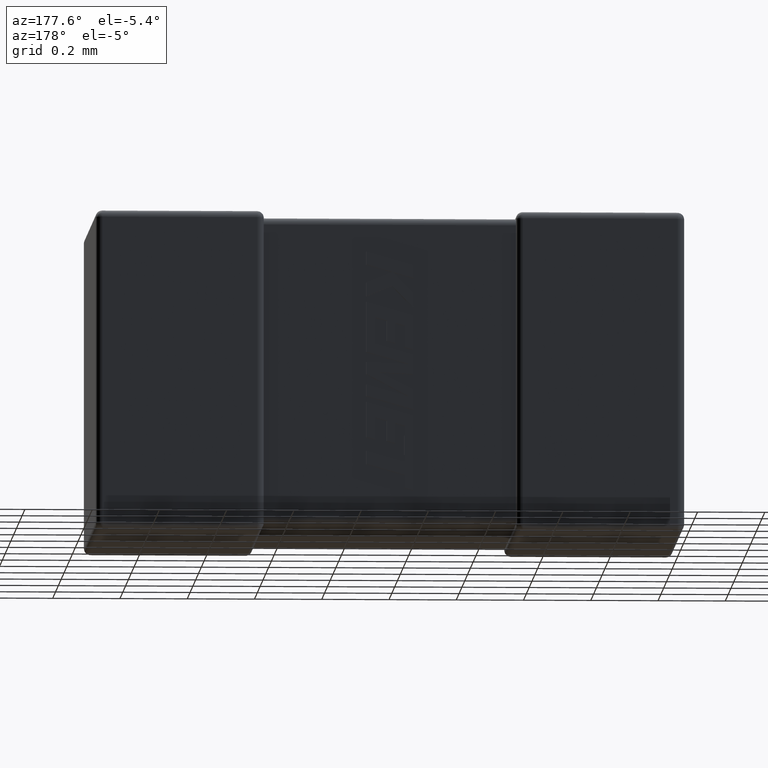
[diagram: clean part render]
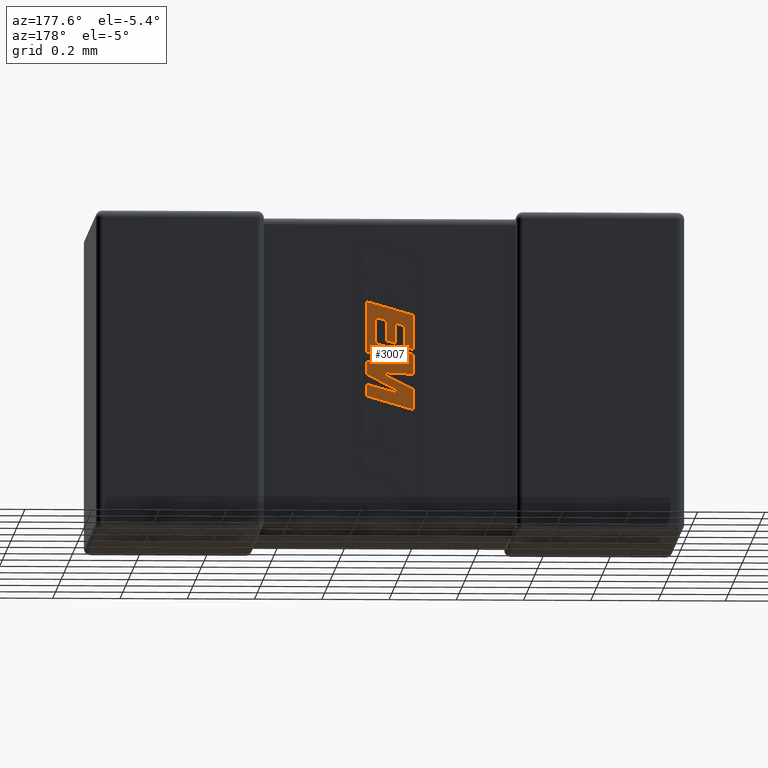
[diagram: same view with one face highlighted and labeled with its STEP entity id]
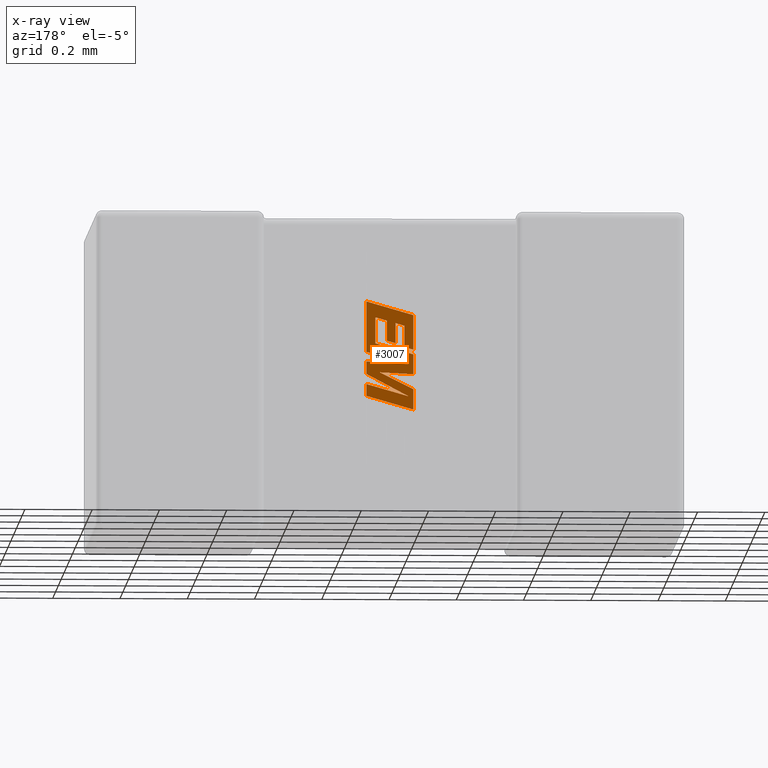
[diagram: x-ray of the same camera — body ghosted, the highlighted face saturated]
A machine part, auxiliary view. The second image highlights one B-rep face of the part: STEP entity #3007.
The next image is the same camera in x-ray: the body ghosted, the highlighted face saturated — about 0% of this face is hidden behind the body in this view.
In plain terms, the highlighted planar face has unit normal (0, -1, 0).
Its self-contained STEP definition (entity closure, byte-faithful):
#19 = CARTESIAN_POINT ( 'NONE',  ( 0.8053395720805847091, 0.8552400000000002223, -0.5908525053673584493 ) ) ;
#91 = CARTESIAN_POINT ( 'NONE',  ( 0.9184295188700125623, 0.8552400000000002223, -0.3935013928317807608 ) ) ;
#92 = DIRECTION ( 'NONE',  ( -0.9985542843760948362, 0.000000000000000000, -0.05375259206908061804 ) ) ;
#118 = ORIENTED_EDGE ( 'NONE', *, *, #2571, .T. ) ;
#128 = PLANE ( 'NONE',  #1115 ) ;
#167 = LINE ( 'NONE', #4119, #615 ) ;
#192 = VERTEX_POINT ( 'NONE', #470 ) ;
#251 = CARTESIAN_POINT ( 'NONE',  ( 0.8579000349360555999, 0.8552400000000002223, -0.3333375343456604356 ) ) ;
#276 = CARTESIAN_POINT ( 'NONE',  ( 0.9450000000000022826, 0.8552400000000002223, -0.4851328202125018696 ) ) ;
#277 = VERTEX_POINT ( 'NONE', #718 ) ;
#322 = VECTOR ( 'NONE', #440, 1000.000000000000000 ) ;
#327 = EDGE_CURVE ( 'NONE', #4285, #4440, #2148, .T. ) ;
#333 = ORIENTED_EDGE ( 'NONE', *, *, #2690, .T. ) ;
#340 = DIRECTION ( 'NONE',  ( -0.9615454294334448981, 0.000000000000000000, -0.2746459304917006072 ) ) ;
#370 = LINE ( 'NONE', #2471, #3634 ) ;
#376 = CARTESIAN_POINT ( 'NONE',  ( 0.9450000000000022826, 0.8552400000000002223, -0.2687122809135727430 ) ) ;
#384 = VECTOR ( 'NONE', #1801, 1000.000000000000114 ) ;
#388 = VECTOR ( 'NONE', #2748, 1000.000000000000000 ) ;
#435 = DIRECTION ( 'NONE',  ( 0.000000000000000000, 0.000000000000000000, -1.000000000000000000 ) ) ;
#440 = DIRECTION ( 'NONE',  ( 0.000000000000000000, 0.000000000000000000, 1.000000000000000000 ) ) ;
#449 = ORIENTED_EDGE ( 'NONE', *, *, #1684, .T. ) ;
#465 = VECTOR ( 'NONE', #3577, 1000.000000000000000 ) ;
#470 = CARTESIAN_POINT ( 'NONE',  ( 0.9450000000000022826, 0.8552400000000002223, -0.4851328202125018696 ) ) ;
#474 = LINE ( 'NONE', #4068, #1827 ) ;
#491 = DIRECTION ( 'NONE',  ( 0.000000000000000000, 0.000000000000000000, 1.000000000000000000 ) ) ;
#492 = VERTEX_POINT ( 'NONE', #2584 ) ;
#513 = DIRECTION ( 'NONE',  ( 0.9611542233438712390, 0.000000000000000000, 0.2760118818968482213 ) ) ;
#514 = ORIENTED_EDGE ( 'NONE', *, *, #2951, .T. ) ;
#533 = LINE ( 'NONE', #4558, #3491 ) ;
#553 = DIRECTION ( 'NONE',  ( -0.9601763114327565019, 0.000000000000000000, -0.2793947940878393488 ) ) ;
#562 = ORIENTED_EDGE ( 'NONE', *, *, #1768, .T. ) ;
#593 = DIRECTION ( 'NONE',  ( 0.9610853065513847993, 0.000000000000000000, 0.2762517575166369976 ) ) ;
#609 = EDGE_CURVE ( 'NONE', #784, #4287, #4008, .T. ) ;
#610 = EDGE_CURVE ( 'NONE', #3683, #4062, #800, .T. ) ;
#615 = VECTOR ( 'NONE', #491, 1000.000000000000000 ) ;
#628 = CARTESIAN_POINT ( 'NONE',  ( 0.9450000000000022826, 0.8552400000000002223, -0.4191694881637327841 ) ) ;
#652 = CARTESIAN_POINT ( 'NONE',  ( 0.9184295188700125623, 0.8552400000000002223, -0.3935013928317807608 ) ) ;
#686 = ORIENTED_EDGE ( 'NONE', *, *, #2667, .T. ) ;
#693 = CARTESIAN_POINT ( 'NONE',  ( 0.8579000349360555999, 0.8552400000000002223, -0.3333375343456604356 ) ) ;
#718 = CARTESIAN_POINT ( 'NONE',  ( 0.9450000000000022826, 0.8552400000000002223, -0.5506991025592369304 ) ) ;
#777 = LINE ( 'NONE', #2589, #1614 ) ;
#781 = DIRECTION ( 'NONE',  ( -0.9611638845408968512, 0.000000000000000000, -0.2759782365590690012 ) ) ;
#784 = VERTEX_POINT ( 'NONE', #628 ) ;
#800 = LINE ( 'NONE', #2302, #1048 ) ;
#836 = LINE ( 'NONE', #2936, #322 ) ;
#958 = CARTESIAN_POINT ( 'NONE',  ( 0.8837184572183794939, 0.8552400000000002223, -0.3259715192315810195 ) ) ;
#996 = CARTESIAN_POINT ( 'NONE',  ( 0.8206639919705974728, 0.8552400000000002223, -0.4548699891798935746 ) ) ;
#1004 = CARTESIAN_POINT ( 'NONE',  ( 0.8053395720805847091, 0.8552400000000002223, -0.3089009299571303102 ) ) ;
#1027 = DIRECTION ( 'NONE',  ( 0.000000000000000000, 0.000000000000000000, 1.000000000000000000 ) ) ;
#1034 = VECTOR ( 'NONE', #340, 1000.000000000000227 ) ;
#1045 = DIRECTION ( 'NONE',  ( -0.9617234872620624708, 0.000000000000000000, -0.2740217765953968376 ) ) ;
#1048 = VECTOR ( 'NONE', #1252, 1000.000000000000000 ) ;
#1050 = CARTESIAN_POINT ( 'NONE',  ( 0.8319232174250339451, 0.8552400000000002223, -0.3408963415075652037 ) ) ;
#1115 = AXIS2_PLACEMENT_3D ( 'NONE', #4084, #4340, #2556 ) ;
#1121 = CARTESIAN_POINT ( 'NONE',  ( 0.9450000000000022826, 0.8552400000000002223, -0.4479005991159001332 ) ) ;
#1133 = VERTEX_POINT ( 'NONE', #3079 ) ;
#1236 = ORIENTED_EDGE ( 'NONE', *, *, #3587, .T. ) ;
#1252 = DIRECTION ( 'NONE',  ( 0.000000000000000000, 0.000000000000000000, 1.000000000000000000 ) ) ;
#1270 = VECTOR ( 'NONE', #4099, 1000.000000000000227 ) ;
#1308 = VECTOR ( 'NONE', #513, 1000.000000000000114 ) ;
#1310 = EDGE_CURVE ( 'NONE', #4204, #1398, #2897, .T. ) ;
#1330 = ORIENTED_EDGE ( 'NONE', *, *, #3188, .T. ) ;
#1342 = EDGE_CURVE ( 'NONE', #3086, #3363, #4282, .T. ) ;
#1352 = VERTEX_POINT ( 'NONE', #4449 ) ;
#1398 = VERTEX_POINT ( 'NONE', #91 ) ;
#1431 = VERTEX_POINT ( 'NONE', #1121 ) ;
#1445 = ORIENTED_EDGE ( 'NONE', *, *, #3425, .T. ) ;
#1521 = VERTEX_POINT ( 'NONE', #2082 ) ;
#1598 = CARTESIAN_POINT ( 'NONE',  ( 0.9450000000000022826, 0.8552400000000002223, -0.4479005991159001332 ) ) ;
#1614 = VECTOR ( 'NONE', #92, 1000.000000000000227 ) ;
#1684 = EDGE_CURVE ( 'NONE', #4287, #1431, #2913, .T. ) ;
#1768 = EDGE_CURVE ( 'NONE', #192, #1352, #3526, .T. ) ;
#1801 = DIRECTION ( 'NONE',  ( -0.8843386665637650301, 0.000000000000000000, -0.4668459304955136502 ) ) ;
#1827 = VECTOR ( 'NONE', #2011, 1000.000000000000000 ) ;
#1856 = ORIENTED_EDGE ( 'NONE', *, *, #4192, .T. ) ;
#1875 = CARTESIAN_POINT ( 'NONE',  ( 0.8837184572183794939, 0.8552400000000002223, -0.3859069148949116901 ) ) ;
#1936 = ORIENTED_EDGE ( 'NONE', *, *, #2862, .T. ) ;
#1946 = ORIENTED_EDGE ( 'NONE', *, *, #4271, .T. ) ;
#1978 = EDGE_CURVE ( 'NONE', #2854, #3086, #2697, .T. ) ;
#2009 = EDGE_CURVE ( 'NONE', #1431, #192, #4540, .T. ) ;
#2011 = DIRECTION ( 'NONE',  ( 0.000000000000000000, 0.000000000000000000, -1.000000000000000000 ) ) ;
#2034 = VECTOR ( 'NONE', #2053, 1000.000000000000114 ) ;
#2053 = DIRECTION ( 'NONE',  ( -0.9610674221107078363, 0.000000000000000000, -0.2763139702539094689 ) ) ;
#2082 = CARTESIAN_POINT ( 'NONE',  ( 0.9184295188700125623, 0.8552400000000002223, -0.3160813721079296923 ) ) ;
#2114 = CARTESIAN_POINT ( 'NONE',  ( 0.9450000000000022826, 0.8552400000000002223, -0.4191694881637327841 ) ) ;
#2142 = CARTESIAN_POINT ( 'NONE',  ( 0.8053395720805847091, 0.8552400000000002223, -0.3089009299571303102 ) ) ;
#2147 = LINE ( 'NONE', #3576, #1034 ) ;
#2148 = LINE ( 'NONE', #4636, #465 ) ;
#2268 = CARTESIAN_POINT ( 'NONE',  ( 0.8053395720805847091, 0.8552400000000002223, -0.4260076608447047608 ) ) ;
#2302 = CARTESIAN_POINT ( 'NONE',  ( 0.8053395720805847091, 0.8552400000000002223, -0.5908525053673584493 ) ) ;
#2402 = CARTESIAN_POINT ( 'NONE',  ( 0.8053395720805847091, 0.8552400000000002223, -0.4260076608447047608 ) ) ;
#2404 = ORIENTED_EDGE ( 'NONE', *, *, #4036, .T. ) ;
#2439 = EDGE_CURVE ( 'NONE', #4440, #4670, #3516, .T. ) ;
#2448 = CARTESIAN_POINT ( 'NONE',  ( 0.8053395720805847091, 0.8552400000000002223, -0.4120773737585498031 ) ) ;
#2471 = CARTESIAN_POINT ( 'NONE',  ( 0.9184295188700125623, 0.8552400000000002223, -0.3160813721079296923 ) ) ;
#2498 = DIRECTION ( 'NONE',  ( 0.000000000000000000, 0.000000000000000000, -1.000000000000000000 ) ) ;
#2501 = VECTOR ( 'NONE', #2762, 1000.000000000000227 ) ;
#2556 = DIRECTION ( 'NONE',  ( 0.000000000000000000, 0.000000000000000000, -1.000000000000000000 ) ) ;
#2571 = EDGE_CURVE ( 'NONE', #4182, #1133, #777, .T. ) ;
#2584 = CARTESIAN_POINT ( 'NONE',  ( 0.8579000349360555999, 0.8552400000000002223, -0.3932814230507400421 ) ) ;
#2589 = CARTESIAN_POINT ( 'NONE',  ( 0.9051147762025542054, 0.8552400000000002223, -0.4801131553883827285 ) ) ;
#2650 = CARTESIAN_POINT ( 'NONE',  ( 0.9450000000000022826, 0.8552400000000002223, -0.2687122809135727430 ) ) ;
#2657 = DIRECTION ( 'NONE',  ( -0.9619530280415479195, 0.000000000000000000, -0.2732148821746301914 ) ) ;
#2664 = CARTESIAN_POINT ( 'NONE',  ( 0.9450000000000022826, 0.8552400000000002223, -0.5152092289786281976 ) ) ;
#2667 = EDGE_CURVE ( 'NONE', #3519, #277, #2771, .T. ) ;
#2690 = EDGE_CURVE ( 'NONE', #277, #3683, #3110, .T. ) ;
#2697 = LINE ( 'NONE', #251, #3481 ) ;
#2704 = CARTESIAN_POINT ( 'NONE',  ( 0.9450000000000022826, 0.8552400000000002223, -0.5152092289786281976 ) ) ;
#2714 = CARTESIAN_POINT ( 'NONE',  ( 0.8053395720805847091, 0.8552400000000002223, -0.5295983915511064399 ) ) ;
#2746 = VERTEX_POINT ( 'NONE', #958 ) ;
#2748 = DIRECTION ( 'NONE',  ( 0.000000000000000000, 0.000000000000000000, -1.000000000000000000 ) ) ;
#2762 = DIRECTION ( 'NONE',  ( 0.9610029908221285888, 0.000000000000000000, 0.2765379750249931656 ) ) ;
#2771 = LINE ( 'NONE', #2704, #4509 ) ;
#2775 = VECTOR ( 'NONE', #435, 1000.000000000000000 ) ;
#2778 = ORIENTED_EDGE ( 'NONE', *, *, #609, .T. ) ;
#2785 = VECTOR ( 'NONE', #781, 1000.000000000000114 ) ;
#2797 = VECTOR ( 'NONE', #1027, 1000.000000000000000 ) ;
#2820 = ORIENTED_EDGE ( 'NONE', *, *, #610, .T. ) ;
#2854 = VERTEX_POINT ( 'NONE', #693 ) ;
#2862 = EDGE_CURVE ( 'NONE', #2969, #492, #2147, .T. ) ;
#2897 = LINE ( 'NONE', #2402, #3669 ) ;
#2913 = LINE ( 'NONE', #3276, #4444 ) ;
#2936 = CARTESIAN_POINT ( 'NONE',  ( 0.8579000349360555999, 0.8552400000000002223, -0.3932814230507400421 ) ) ;
#2951 = EDGE_CURVE ( 'NONE', #4670, #784, #4058, .T. ) ;
#2969 = VERTEX_POINT ( 'NONE', #1875 ) ;
#2983 = FACE_OUTER_BOUND ( 'NONE', #3568, .T. ) ;
#3007 = ADVANCED_FACE ( 'NONE', ( #2983 ), #128, .F. ) ;
#3072 = ORIENTED_EDGE ( 'NONE', *, *, #2009, .T. ) ;
#3079 = CARTESIAN_POINT ( 'NONE',  ( 0.8053395720805847091, 0.8552400000000002223, -0.4854840960870434041 ) ) ;
#3085 = DIRECTION ( 'NONE',  ( 0.000000000000000000, 0.000000000000000000, -1.000000000000000000 ) ) ;
#3086 = VERTEX_POINT ( 'NONE', #4269 ) ;
#3110 = LINE ( 'NONE', #3829, #2034 ) ;
#3188 = EDGE_CURVE ( 'NONE', #4062, #4182, #3433, .T. ) ;
#3276 = CARTESIAN_POINT ( 'NONE',  ( 0.8206639919705974728, 0.8552400000000002223, -0.4548699891798935746 ) ) ;
#3308 = ORIENTED_EDGE ( 'NONE', *, *, #1310, .T. ) ;
#3363 = VERTEX_POINT ( 'NONE', #3955 ) ;
#3425 = EDGE_CURVE ( 'NONE', #1133, #4204, #167, .T. ) ;
#3433 = LINE ( 'NONE', #2714, #1270 ) ;
#3456 = ORIENTED_EDGE ( 'NONE', *, *, #3869, .T. ) ;
#3481 = VECTOR ( 'NONE', #553, 1000.000000000000227 ) ;
#3491 = VECTOR ( 'NONE', #2657, 1000.000000000000000 ) ;
#3516 = LINE ( 'NONE', #1004, #2501 ) ;
#3519 = VERTEX_POINT ( 'NONE', #2664 ) ;
#3526 = LINE ( 'NONE', #276, #384 ) ;
#3534 = CARTESIAN_POINT ( 'NONE',  ( 0.8053395720805847091, 0.8552400000000002223, -0.5295983915511064399 ) ) ;
#3558 = CARTESIAN_POINT ( 'NONE',  ( 0.9051147762025542054, 0.8552400000000002223, -0.4801131553883827285 ) ) ;
#3568 = EDGE_LOOP ( 'NONE', ( #2820, #1330, #118, #1445, #3308, #1236, #2404, #3456, #1936, #1856, #4525, #3617, #4281, #3706, #3993, #514, #2778, #449, #3072, #562, #1946, #686, #333 ) ) ;
#3576 = CARTESIAN_POINT ( 'NONE',  ( 0.8837184572183794939, 0.8552400000000002223, -0.3859069148949116901 ) ) ;
#3577 = DIRECTION ( 'NONE',  ( 0.000000000000000000, 0.000000000000000000, 1.000000000000000000 ) ) ;
#3587 = EDGE_CURVE ( 'NONE', #1398, #1521, #3882, .T. ) ;
#3617 = ORIENTED_EDGE ( 'NONE', *, *, #1342, .T. ) ;
#3634 = VECTOR ( 'NONE', #1045, 1000.000000000000000 ) ;
#3669 = VECTOR ( 'NONE', #593, 1000.000000000000000 ) ;
#3683 = VERTEX_POINT ( 'NONE', #19 ) ;
#3706 = ORIENTED_EDGE ( 'NONE', *, *, #327, .T. ) ;
#3746 = VECTOR ( 'NONE', #2498, 1000.000000000000000 ) ;
#3829 = CARTESIAN_POINT ( 'NONE',  ( 0.9450000000000022826, 0.8552400000000002223, -0.5506991025592369304 ) ) ;
#3869 = EDGE_CURVE ( 'NONE', #2746, #2969, #474, .T. ) ;
#3882 = LINE ( 'NONE', #652, #2797 ) ;
#3891 = CARTESIAN_POINT ( 'NONE',  ( 0.8200652325271690080, 0.8552400000000002223, -0.5510863852632390536 ) ) ;
#3955 = CARTESIAN_POINT ( 'NONE',  ( 0.8319232174250339451, 0.8552400000000002223, -0.4045270596383866990 ) ) ;
#3993 = ORIENTED_EDGE ( 'NONE', *, *, #2439, .T. ) ;
#4008 = LINE ( 'NONE', #2114, #2785 ) ;
#4036 = EDGE_CURVE ( 'NONE', #1521, #2746, #370, .T. ) ;
#4058 = LINE ( 'NONE', #2650, #2775 ) ;
#4062 = VERTEX_POINT ( 'NONE', #3534 ) ;
#4068 = CARTESIAN_POINT ( 'NONE',  ( 0.8837184572183794939, 0.8552400000000002223, -0.3259715192315810195 ) ) ;
#4084 = CARTESIAN_POINT ( 'NONE',  ( 0.007753220357564218589, 0.8552400000000002223, 0.002149546054919077975 ) ) ;
#4099 = DIRECTION ( 'NONE',  ( 0.8958676361826828360, 0.000000000000000000, 0.4443210308329466063 ) ) ;
#4119 = CARTESIAN_POINT ( 'NONE',  ( 0.8053395720805847091, 0.8552400000000002223, -0.4854840960870434041 ) ) ;
#4182 = VERTEX_POINT ( 'NONE', #3558 ) ;
#4192 = EDGE_CURVE ( 'NONE', #492, #2854, #836, .T. ) ;
#4204 = VERTEX_POINT ( 'NONE', #2268 ) ;
#4206 = LINE ( 'NONE', #3891, #1308 ) ;
#4269 = CARTESIAN_POINT ( 'NONE',  ( 0.8319232174250339451, 0.8552400000000002223, -0.3408963415075652037 ) ) ;
#4271 = EDGE_CURVE ( 'NONE', #1352, #3519, #4206, .T. ) ;
#4281 = ORIENTED_EDGE ( 'NONE', *, *, #4380, .T. ) ;
#4282 = LINE ( 'NONE', #1050, #3746 ) ;
#4285 = VERTEX_POINT ( 'NONE', #2448 ) ;
#4287 = VERTEX_POINT ( 'NONE', #996 ) ;
#4340 = DIRECTION ( 'NONE',  ( 0.000000000000000000, -1.000000000000000000, 0.000000000000000000 ) ) ;
#4343 = DIRECTION ( 'NONE',  ( 0.9984327301130250243, 0.000000000000000000, 0.05596501978067342647 ) ) ;
#4380 = EDGE_CURVE ( 'NONE', #3363, #4285, #533, .T. ) ;
#4440 = VERTEX_POINT ( 'NONE', #2142 ) ;
#4444 = VECTOR ( 'NONE', #4343, 1000.000000000000114 ) ;
#4449 = CARTESIAN_POINT ( 'NONE',  ( 0.8200652325271690080, 0.8552400000000002223, -0.5510863852632390536 ) ) ;
#4509 = VECTOR ( 'NONE', #3085, 1000.000000000000000 ) ;
#4525 = ORIENTED_EDGE ( 'NONE', *, *, #1978, .T. ) ;
#4540 = LINE ( 'NONE', #1598, #388 ) ;
#4558 = CARTESIAN_POINT ( 'NONE',  ( 0.8319232174250339451, 0.8552400000000002223, -0.4045270596383866990 ) ) ;
#4636 = CARTESIAN_POINT ( 'NONE',  ( 0.8053395720805847091, 0.8552400000000002223, -0.4120773737585498031 ) ) ;
#4670 = VERTEX_POINT ( 'NONE', #376 ) ;